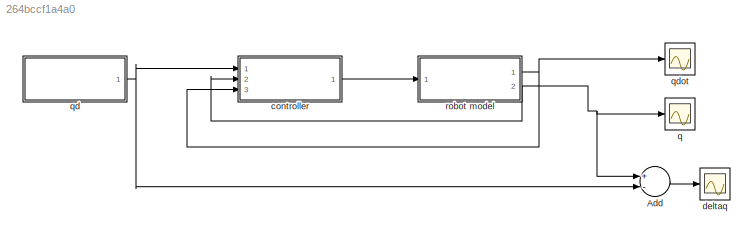
MODEL slx_264bccf1a4a0
KIND model
CONFIG AbsTol = auto
CONFIG EnableMultiTasking = off
CONFIG FixedStep = auto
CONFIG MaxStep = auto
CONFIG MinStep = auto
CONFIG RelTol = 1e-3
CONFIG SampleTimeConstraint = Unconstrained
CONFIG Solver = VariableStepAuto
CONFIG SolverName = VariableStepAuto
CONFIG StartTime = 0.0
CONFIG StopTime = 10
BLOCK [Sum] Add
  InputSameDT = off
  Inputs = +-
  OutDataTypeStr = Inherit: Inherit via internal rule
  Ports = [2, 1]
  SaturateOnIntegerOverflow = off
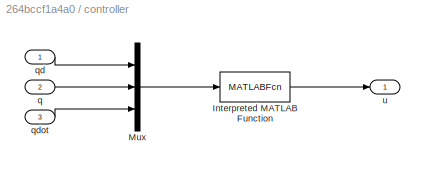
BLOCK [SubSystem] controller
  Ports = [3, 1]
  RequestExecContextInheritance = off
BLOCK [MATLABFcn] controller/Interpreted MATLAB Function
  MATLABFcn = controller_PDg_3dof
  Ports = [1, 1]
BLOCK [Mux] controller/Mux
  DisplayOption = bar
  Inputs = 3
  Ports = [3, 1]
BLOCK [Inport] controller/q
  IconDisplay = Port number
  Port = 2
BLOCK [Inport] controller/qd
  IconDisplay = Port number
BLOCK [Inport] controller/qdot
  IconDisplay = Port number
  Port = 3
BLOCK [Outport] controller/u 
  IconDisplay = Port number
BLOCK [Scope] deltaq
  Floating = off
  NumInputPorts = 1
  Ports = [1]
  ScopeSpecificationString = Simulink.scopes.TimeScopeBlockCfg('CurrentConfiguration', extmgr.ConfigurationSet(extmgr.Configuration('Core','General UI',true,'DisplayFullSourceName',true),extmgr.Configuration('Core','Source UI',true),extmgr.Configuration('Sources','WiredSimulink',true,'DataLoggingVariableName','ScopeData1'),extmgr.Configuration('Visuals','Time Domain',true,'SerializedDisplays',{struct('MinYLimReal','-112.00752...<+1544ch>
BLOCK [Scope] q 
  Floating = off
  NumInputPorts = 1
  Ports = [1]
  ScopeSpecificationString = Simulink.scopes.TimeScopeBlockCfg('CurrentConfiguration', extmgr.ConfigurationSet(extmgr.Configuration('Core','General UI',true),extmgr.Configuration('Core','Source UI',true),extmgr.Configuration('Sources','WiredSimulink',true,'DataLoggingVariableName','ScopeData1'),extmgr.Configuration('Visuals','Time Domain',true,'SerializedDisplays',{struct('MinYLimReal','-343.09994','MaxYLimReal','37.52138','Y...<+1420ch>
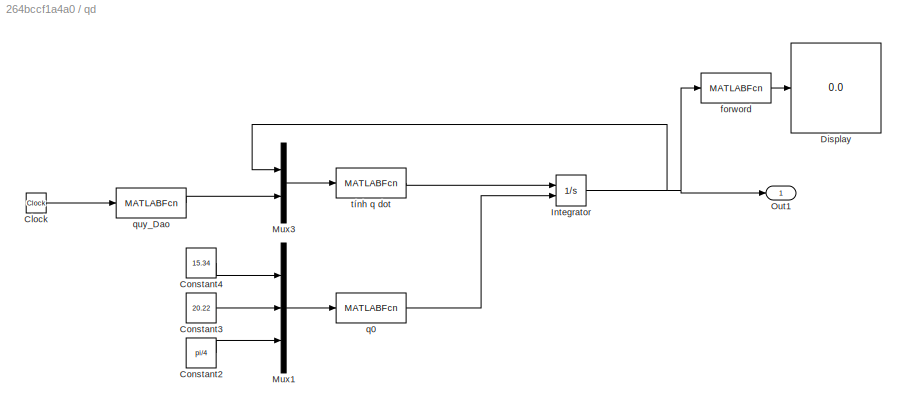
BLOCK [SubSystem] qd
  Ports = [0, 1]
  RequestExecContextInheritance = off
BLOCK [Clock] qd/Clock
BLOCK [Constant] qd/Constant2
  Value = pi/4
BLOCK [Constant] qd/Constant3
  Value = 20.22
BLOCK [Constant] qd/Constant4
  Value = 15.34
BLOCK [Display] qd/Display
  Decimation = 3
  Ports = [1]
BLOCK [Integrator] qd/Integrator
  InitialConditionSource = external
  Ports = [2, 1]
BLOCK [Mux] qd/Mux1
  DisplayOption = bar
  Inputs = 3
  Ports = [3, 1]
BLOCK [Mux] qd/Mux3
  DisplayOption = bar
  Inputs = 2
  Ports = [2, 1]
BLOCK [Outport] qd/Out1
  IconDisplay = Port number
BLOCK [MATLABFcn] qd/forword
  MATLABFcn = forward
  OutputDimensions = 3
  Ports = [1, 1]
BLOCK [MATLABFcn] qd/q0
  MATLABFcn = newton_raphson
  OutputDimensions = 3
  Ports = [1, 1]
BLOCK [MATLABFcn] qd/quy_Dao
  MATLABFcn = trajectory_tron
  OutputDimensions = 6
  Ports = [1, 1]
BLOCK [MATLABFcn] qd/tính q dot 
  MATLABFcn = tinh_q_dot
  OutputDimensions = 3
  Ports = [1, 1]
BLOCK [Scope] qdot
  Floating = off
  NumInputPorts = 1
  Ports = [1]
  ScopeSpecificationString = Simulink.scopes.TimeScopeBlockCfg('CurrentConfiguration', extmgr.ConfigurationSet(extmgr.Configuration('Core','General UI',true),extmgr.Configuration('Core','Source UI',true),extmgr.Configuration('Sources','WiredSimulink',true),extmgr.Configuration('Visuals','Time Domain',true,'SerializedDisplays',{struct('MinYLimReal','-62.82059','MaxYLimReal','105.81224','YLabelReal','','MinYLimMag','0.00000','M...<+1381ch>
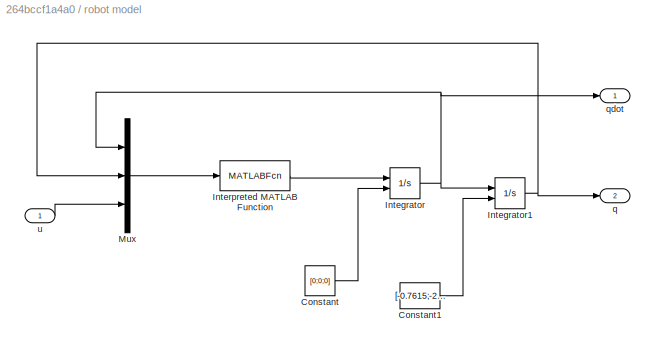
BLOCK [SubSystem] robot model
  Ports = [1, 2]
  RequestExecContextInheritance = off
BLOCK [Constant] robot model/Constant
  Value = [0;0;0]
BLOCK [Constant] robot model/Constant1
  Value = [-0.7615;-244.6;-5.498]
BLOCK [Integrator] robot model/Integrator
  InitialConditionSource = external
  Ports = [2, 1]
BLOCK [Integrator] robot model/Integrator1
  InitialConditionSource = external
  Ports = [2, 1]
BLOCK [MATLABFcn] robot model/Interpreted MATLAB Function
  MATLABFcn = tinhq2dot
  Ports = [1, 1]
BLOCK [Mux] robot model/Mux
  DisplayOption = bar
  Inputs = 3
  Ports = [3, 1]
BLOCK [Outport] robot model/q 
  IconDisplay = Port number
  Port = 2
BLOCK [Outport] robot model/qdot
  IconDisplay = Port number
BLOCK [Inport] robot model/u
  IconDisplay = Port number
LINE Add:1 -> deltaq:1
LINE controller/Interpreted MATLAB Function:1 -> controller/u :1
LINE controller/Mux:1 -> controller/Interpreted MATLAB Function:1
LINE controller/q:1 -> controller/Mux:2
LINE controller/qd:1 -> controller/Mux:1
LINE controller/qdot:1 -> controller/Mux:3
LINE controller:1 -> robot model:1
LINE qd/Clock:1 -> qd/quy_Dao:1
LINE qd/Constant2:1 -> qd/Mux1:3
LINE qd/Constant3:1 -> qd/Mux1:2
LINE qd/Constant4:1 -> qd/Mux1:1
NET qd/Integrator:1 -> qd/Mux3:1, qd/Out1:1, qd/forword:1
LINE qd/Mux1:1 -> qd/q0:1
LINE qd/Mux3:1 -> qd/tính q dot :1
LINE qd/forword:1 -> qd/Display:1
LINE qd/q0:1 -> qd/Integrator:2
LINE qd/quy_Dao:1 -> qd/Mux3:2
LINE qd/tính q dot :1 -> qd/Integrator:1
NET qd:1 -> Add:2, controller:1
LINE robot model/Constant1:1 -> robot model/Integrator1:2
LINE robot model/Constant:1 -> robot model/Integrator:2
NET robot model/Integrator1:1 -> robot model/Mux:2, robot model/q :1
NET robot model/Integrator:1 -> robot model/Integrator1:1, robot model/Mux:1, robot model/qdot:1
LINE robot model/Interpreted MATLAB Function:1 -> robot model/Integrator:1
LINE robot model/Mux:1 -> robot model/Interpreted MATLAB Function:1
LINE robot model/u:1 -> robot model/Mux:3
NET robot model:1 -> controller:3, qdot:1
NET robot model:2 -> Add:1, controller:2, q :1
note: NET lines group one-source signal fan-out (src -> all destinations, sorted); 1:1 wires keep LINE
